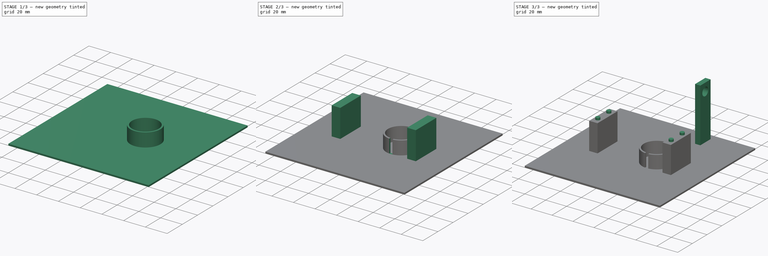
[diagram: build sequence overview — one tinted view per stage of 3, left to right]
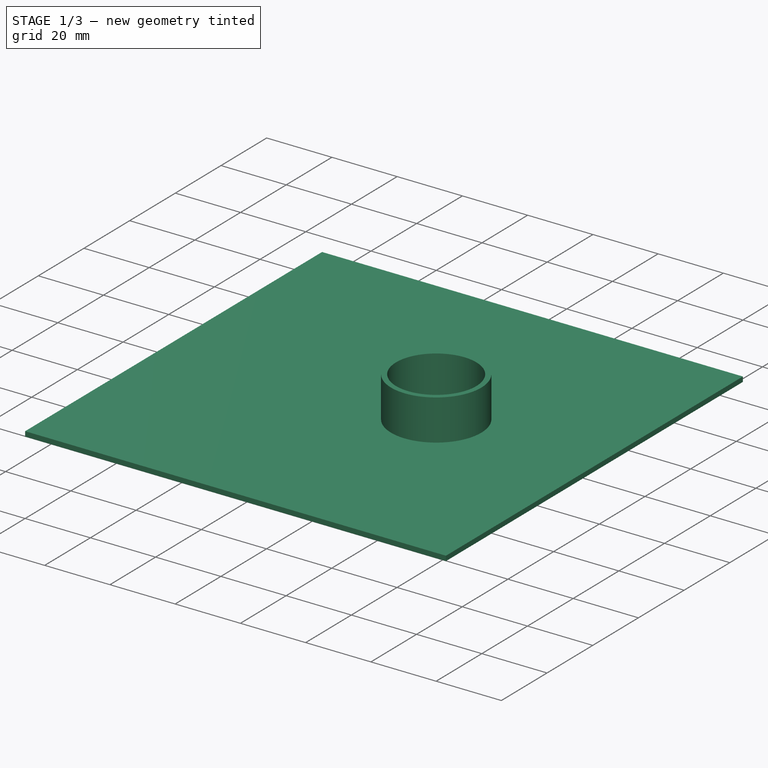
[diagram: stage 1 of 3 — iso view after this stage's code; geometry added in this stage tinted green]
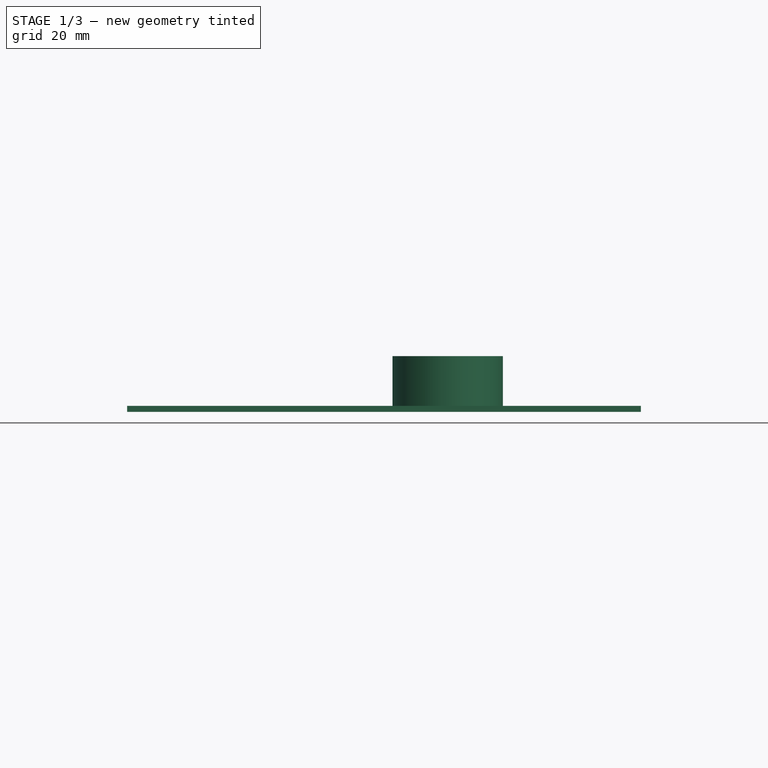
[diagram: stage 1 of 3 — front view after this stage's code; geometry added in this stage tinted green]
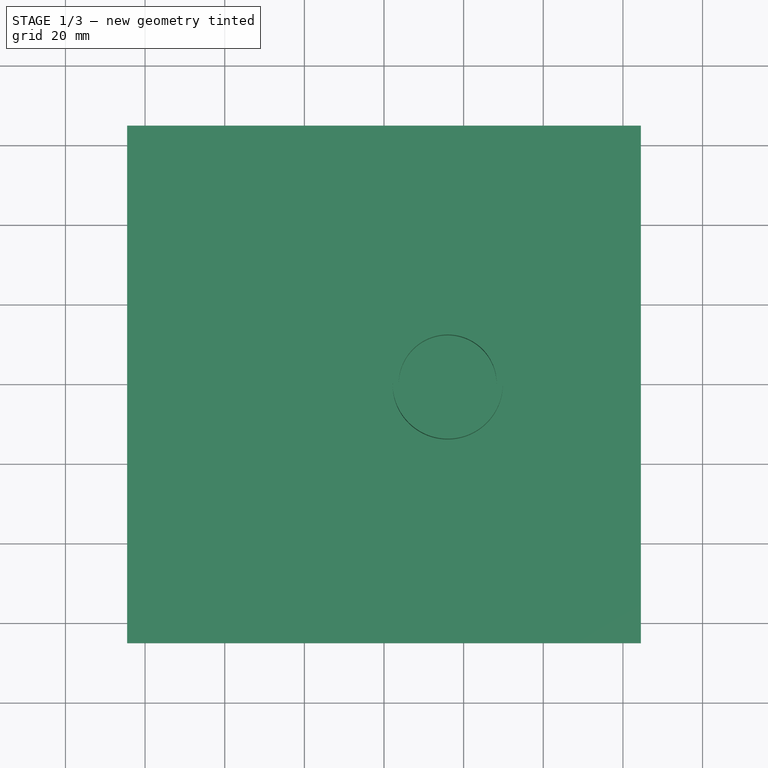
[diagram: stage 1 of 3 — top view after this stage's code; geometry added in this stage tinted green]
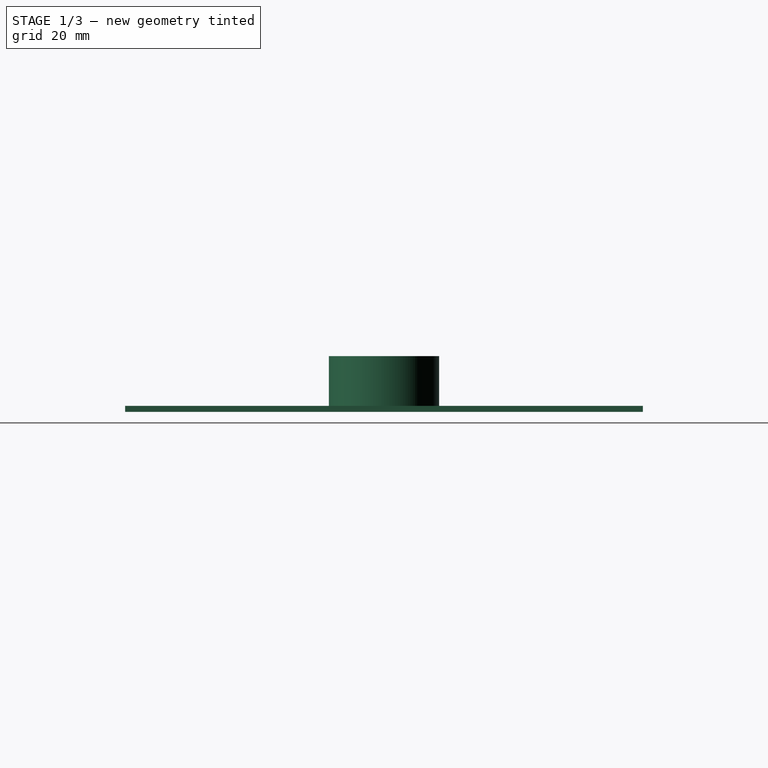
[diagram: stage 1 of 3 — right view after this stage's code; geometry added in this stage tinted green]
FCSTD DOCUMENT  (FreeCAD 0.18.4R)
Label: Resp_Base
License: All rights reserved
LicenseURL: http://en.wikipedia.org/wiki/All_rights_reserved
objects: Sketcher::SketchObject×8, PartDesign::Pad×5, PartDesign::Pocket×3, PartDesign::Body×1
note: 25 computed .brp shape members not serialized (recipe doc carries the construction recipe); baked Part::Feature solids carry a one-line shape summary decoded from their .brp

FEATURE [Sketcher::SketchObject] Sketch
  MapMode = 5
  Support = -> [XY_Plane]
  sketch-geometry (4):
    g0: LineSegment StartX=-64.5 StartY=65 StartZ=0 EndX=64.5 EndY=65 EndZ=0
    g1: LineSegment StartX=64.5 StartY=65 StartZ=0 EndX=64.5 EndY=-65 EndZ=0
    g2: LineSegment StartX=64.5 StartY=-65 StartZ=0 EndX=-64.5 EndY=-65 EndZ=0
    g3: LineSegment StartX=-64.5 StartY=-65 StartZ=0 EndX=-64.5 EndY=65 EndZ=0
  constraints (12):
    c: Coincident(g0,g1)
    c: Coincident(g1,g2)
    c: Coincident(g2,g3)
    c: Coincident(g3,g0)
    c: Horizontal(g0)
    c: Horizontal(g2)
    c: Vertical(g1)
    c: Vertical(g3)
    c: Distance(g0) = 129
    c: Distance(g1) = 130
    c: DistanceX(g0,g-1) = 64.5
    c: DistanceY(g2,g-1) = 65
FEATURE [PartDesign::Pad] Pad
  Length = 1.5
  Length2 = 100
  Profile = -> Sketch
  Type = 0
FEATURE [Sketcher::SketchObject] Sketch001
  MapMode = 5
  Placement = pos=(0,0,1.5) rot=(0,0,1;0rad)
  Support = -> [Pad]
  sketch-geometry (1):
    g0: Circle CenterX=16 CenterY=0 CenterZ=0 NormalX=0 NormalY=0 NormalZ=1 AngleXU=0 Radius=13.85
  constraints (3):
    c: PointOnObject(g0,g-1)
    c: DistanceX(g-1,g0) = 16
    c: Diameter(g0) = 27.7
FEATURE [PartDesign::Pad] Pad001
  BaseFeature = -> Pad
  Length = 12.5
  Length2 = 100
  Profile = -> Sketch001
  Type = 0
FEATURE [Sketcher::SketchObject] Sketch002
  MapMode = 5
  Placement = pos=(0,0,14) rot=(0,0,1;0rad)
  Support = -> [Pad001]
  sketch-geometry (1):
    g0: Circle CenterX=16 CenterY=0 CenterZ=0 NormalX=0 NormalY=0 NormalZ=1 AngleXU=0 Radius=12.3
  constraints (3):
    c: PointOnObject(g0,g-1)
    c: DistanceX(g-1,g0) = 16
    c: Diameter(g0) = 24.6
FEATURE [PartDesign::Pocket] Pocket
  BaseFeature = -> Pad001
  Length = 12.5
  Length2 = 100
  Profile = -> Sketch002
  Type = 0
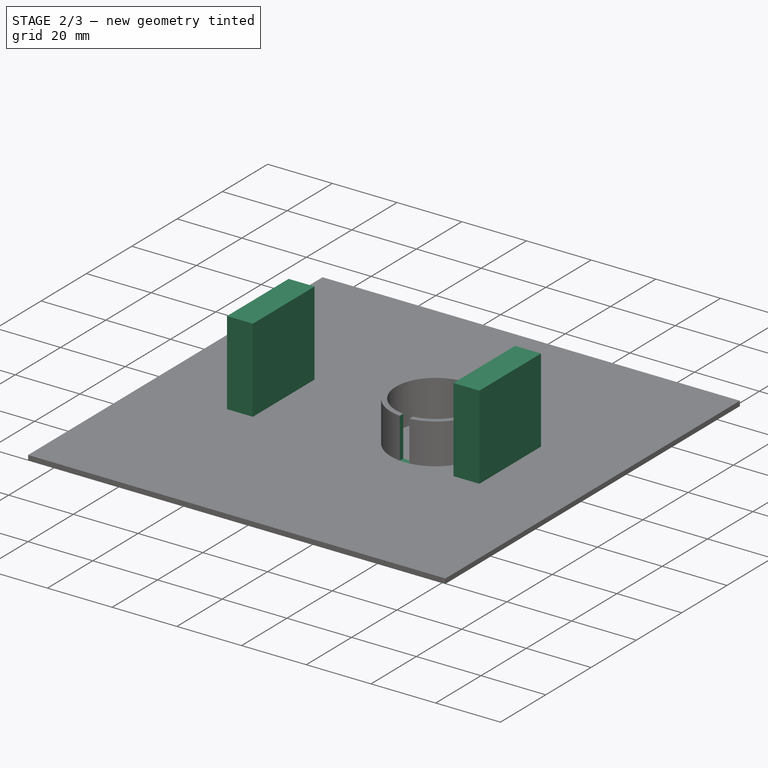
[diagram: stage 2 of 3 — iso view after this stage's code; geometry added in this stage tinted green]
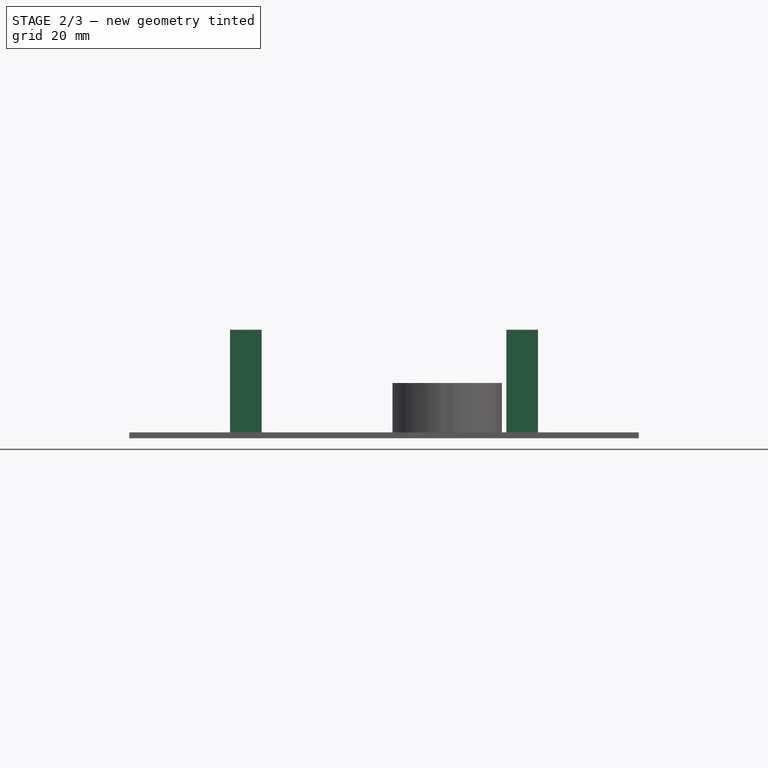
[diagram: stage 2 of 3 — front view after this stage's code; geometry added in this stage tinted green]
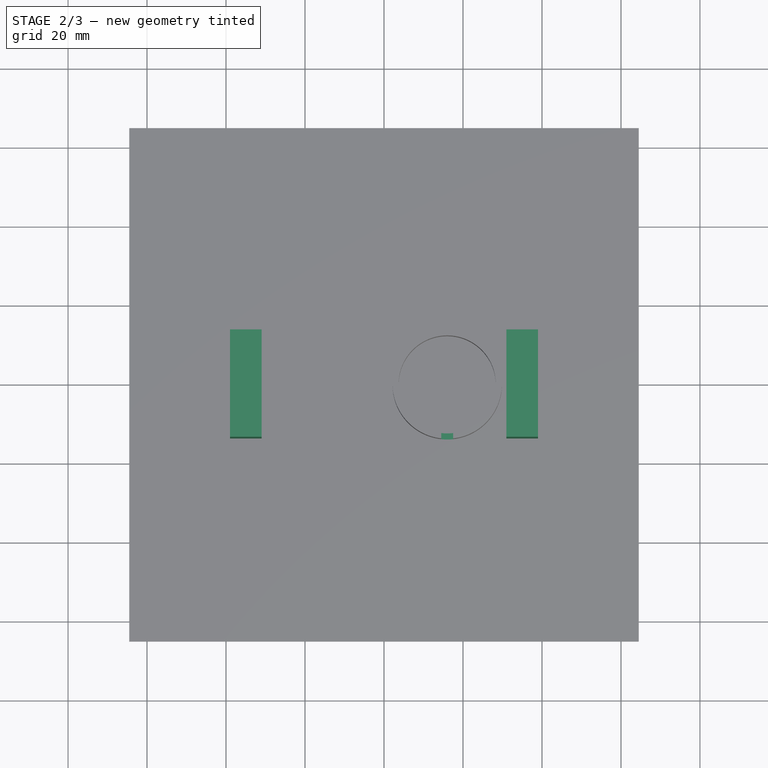
[diagram: stage 2 of 3 — top view after this stage's code; geometry added in this stage tinted green]
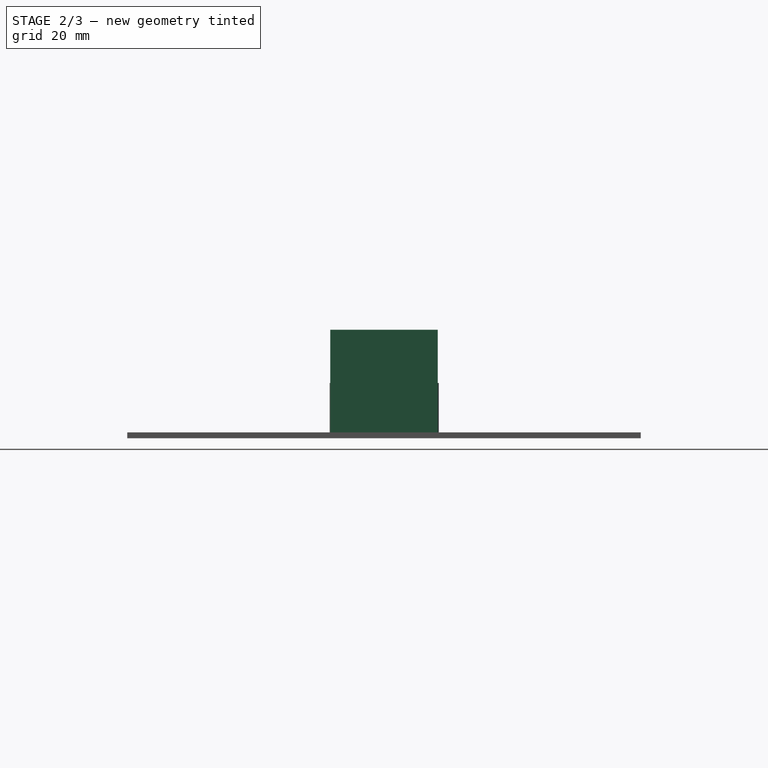
[diagram: stage 2 of 3 — right view after this stage's code; geometry added in this stage tinted green]
FEATURE [Sketcher::SketchObject] Sketch003
  MapMode = 5
  Placement = pos=(0,0,14) rot=(0,0,1;0rad)
  Support = -> [Pocket]
  sketch-geometry (4):
    g0: LineSegment StartX=14.5 StartY=-11 StartZ=0 EndX=17.5 EndY=-11 EndZ=0
    g1: LineSegment StartX=17.5 StartY=-11 StartZ=0 EndX=17.5 EndY=-14.5 EndZ=0
    g2: LineSegment StartX=17.5 StartY=-14.5 StartZ=0 EndX=14.5 EndY=-14.5 EndZ=0
    g3: LineSegment StartX=14.5 StartY=-14.5 StartZ=0 EndX=14.5 EndY=-11 EndZ=0
  constraints (12):
    c: Coincident(g0,g1)
    c: Coincident(g1,g2)
    c: Coincident(g2,g3)
    c: Coincident(g3,g0)
    c: Horizontal(g0)
    c: Horizontal(g2)
    c: Vertical(g1)
    c: Vertical(g3)
    c: Distance(g0) = 3
    c: Distance(g1) = 3.5
    c: DistanceX(g-1,g0) = 14.5
    c: DistanceY(g0,g-1) = 11
FEATURE [PartDesign::Pocket] Pocket001
  BaseFeature = -> Pocket
  Length = 12.5
  Length2 = 100
  Profile = -> Sketch003
  Type = 0
FEATURE [Sketcher::SketchObject] Sketch004
  MapMode = 5
  Placement = pos=(0,0,1.5) rot=(0,0,1;0rad)
  Support = -> [Pocket001]
  sketch-geometry (8):
    g0: LineSegment StartX=31 StartY=13.6 StartZ=0 EndX=39 EndY=13.6 EndZ=0
    g1: LineSegment StartX=39 StartY=13.6 StartZ=0 EndX=39 EndY=-13.6 EndZ=0
    g2: LineSegment StartX=39 StartY=-13.6 StartZ=0 EndX=31 EndY=-13.6 EndZ=0
    g3: LineSegment StartX=31 StartY=-13.6 StartZ=0 EndX=31 EndY=13.6 EndZ=0
    g4: LineSegment StartX=-39 StartY=13.6 StartZ=0 EndX=-31 EndY=13.6 EndZ=0
    g5: LineSegment StartX=-31 StartY=13.6 StartZ=0 EndX=-31 EndY=-13.6 EndZ=0
    g6: LineSegment StartX=-31 StartY=-13.6 StartZ=0 EndX=-39 EndY=-13.6 EndZ=0
    g7: LineSegment StartX=-39 StartY=-13.6 StartZ=0 EndX=-39 EndY=13.6 EndZ=0
  constraints (24):
    c: Coincident(g0,g1)
    c: Coincident(g1,g2)
    c: Coincident(g2,g3)
    c: Coincident(g3,g0)
    c: Horizontal(g0)
    c: Horizontal(g2)
    c: Vertical(g1)
    c: Vertical(g3)
    c: Coincident(g4,g5)
    c: Coincident(g5,g6)
    c: Coincident(g6,g7)
    c: Coincident(g7,g4)
    c: Horizontal(g4)
    c: Horizontal(g6)
    c: Vertical(g5)
    c: Vertical(g7)
    c: DistanceX(g-1,g0) = 39
    c: DistanceX(g4,g-1) = 39
    c: Distance(g0) = 8
    c: Distance(g4) = 8
    c: Distance(g1) = 27.2
    c: Distance(g7) = 27.2
    c: DistanceY(g2,g-1) = 13.6
    c: DistanceY(g5,g-1) = 13.6
FEATURE [PartDesign::Pad] Pad002
  BaseFeature = -> Pocket001
  Length = 26
  Length2 = 100
  Profile = -> Sketch004
  Type = 0
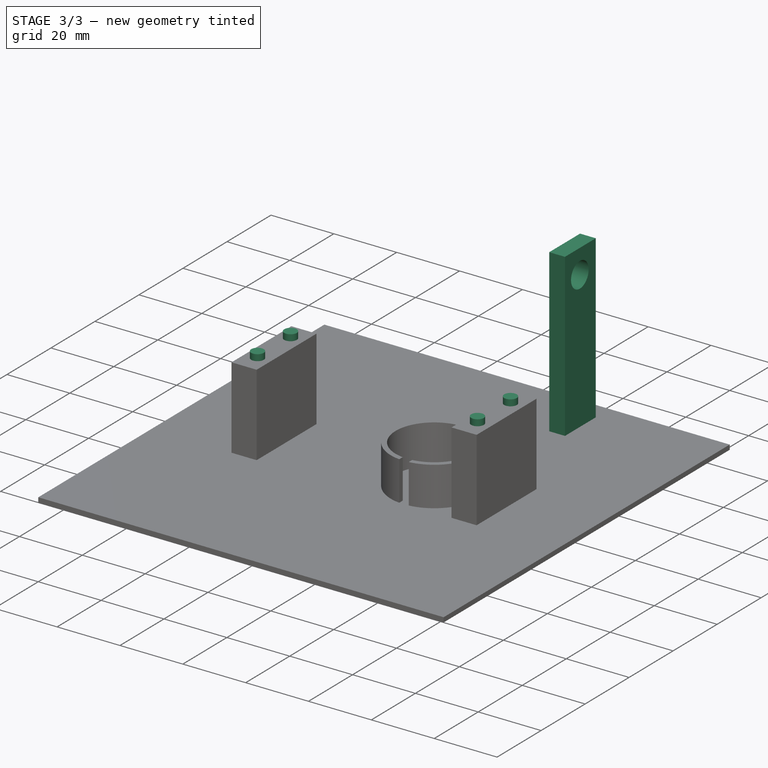
[diagram: stage 3 of 3 — iso view after this stage's code; geometry added in this stage tinted green]
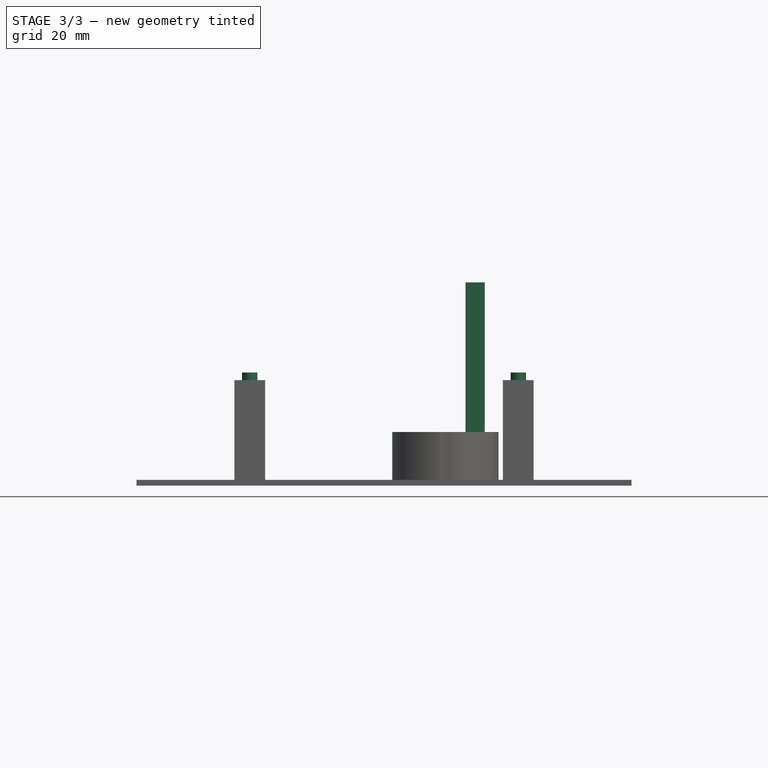
[diagram: stage 3 of 3 — front view after this stage's code; geometry added in this stage tinted green]
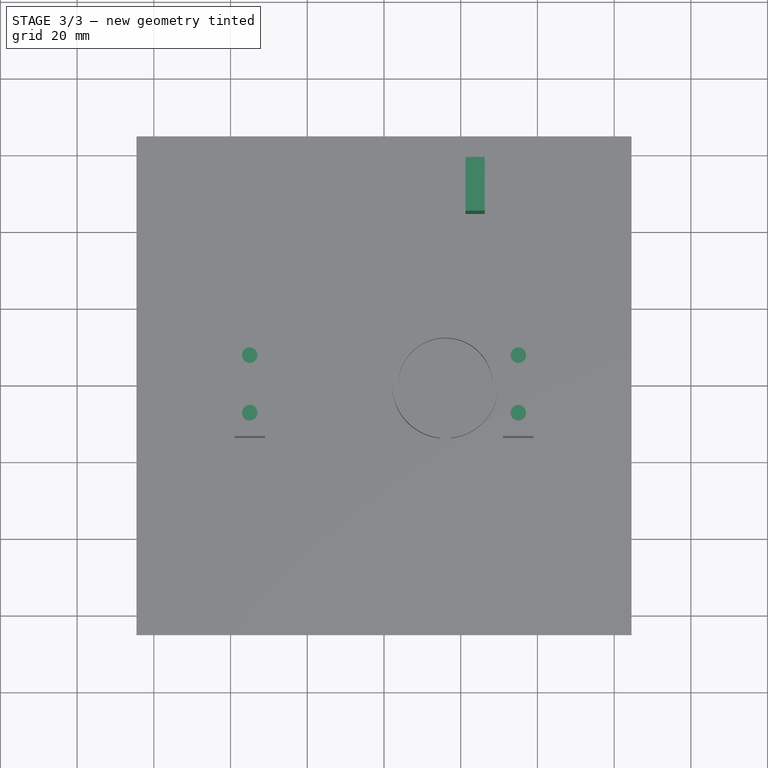
[diagram: stage 3 of 3 — top view after this stage's code; geometry added in this stage tinted green]
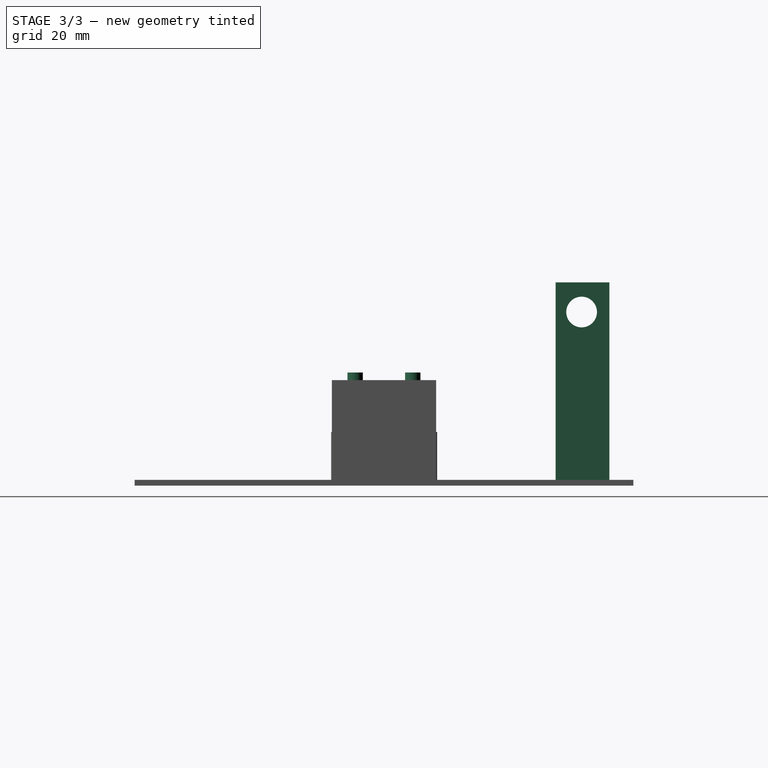
[diagram: stage 3 of 3 — right view after this stage's code; geometry added in this stage tinted green]
FEATURE [Sketcher::SketchObject] Sketch005
  MapMode = 5
  Placement = pos=(0,0,27.5) rot=(0,0,1;0rad)
  Support = -> [Pad002]
  sketch-geometry (4):
    g0: Circle CenterX=35 CenterY=7.5 CenterZ=0 NormalX=0 NormalY=0 NormalZ=1 AngleXU=0 Radius=2
    g1: Circle CenterX=35 CenterY=-7.5 CenterZ=0 NormalX=0 NormalY=0 NormalZ=1 AngleXU=0 Radius=2
    g2: Circle CenterX=-35 CenterY=7.5 CenterZ=0 NormalX=0 NormalY=0 NormalZ=1 AngleXU=0 Radius=2
    g3: Circle CenterX=-35 CenterY=-7.5 CenterZ=0 NormalX=0 NormalY=0 NormalZ=1 AngleXU=0 Radius=2
  constraints (12):
    c: DistanceX(g-1,g0) = 35
    c: DistanceY(g-1,g0) = 7.5
    c: Diameter(g0) = 4
    c: DistanceX(g-1,g1) = 35
    c: DistanceY(g1,g-1) = 7.5
    c: Diameter(g1) = 4
    c: DistanceX(g2,g-1) = 35
    c: DistanceY(g-1,g2) = 7.5
    c: Diameter(g2) = 4
    c: DistanceX(g3,g-1) = 35
    c: DistanceY(g3,g-1) = 7.5
    c: Diameter(g3) = 4
FEATURE [PartDesign::Pad] Pad003
  BaseFeature = -> Pad002
  Length = 2
  Length2 = 100
  Profile = -> Sketch005
  Type = 0
FEATURE [Sketcher::SketchObject] Sketch006
  MapMode = 5
  Placement = pos=(0,0,1.5) rot=(0,0,1;0rad)
  Support = -> [Pad003]
  sketch-geometry (4):
    g0: LineSegment StartX=21.25 StartY=58.75 StartZ=0 EndX=26.25 EndY=58.75 EndZ=0
    g1: LineSegment StartX=26.25 StartY=58.75 StartZ=0 EndX=26.25 EndY=44.75 EndZ=0
    g2: LineSegment StartX=26.25 StartY=44.75 StartZ=0 EndX=21.25 EndY=44.75 EndZ=0
    g3: LineSegment StartX=21.25 StartY=44.75 StartZ=0 EndX=21.25 EndY=58.75 EndZ=0
  constraints (12):
    c: Coincident(g0,g1)
    c: Coincident(g1,g2)
    c: Coincident(g2,g3)
    c: Coincident(g3,g0)
    c: Horizontal(g0)
    c: Horizontal(g2)
    c: Vertical(g1)
    c: Vertical(g3)
    c: Distance(g0) = 5
    c: Distance(g3) = 14
    c: DistanceX(g-1,g2) = 21.25
    c: DistanceY(g-1,g2) = 44.75
FEATURE [PartDesign::Pad] Pad004
  BaseFeature = -> Pad003
  Length = 51.5
  Length2 = 100
  Profile = -> Sketch006
  Type = 0
FEATURE [Sketcher::SketchObject] Sketch007
  MapMode = 5
  Placement = pos=(26.25,0,0) rot=(0.57735,0.57735,0.57735;2.0944rad)
  Support = -> [Pad004]
  sketch-geometry (1):
    g0: Circle CenterX=51.5116 CenterY=45.2623 CenterZ=0 NormalX=0 NormalY=0 NormalZ=1 AngleXU=0 Radius=4
  constraints (1):
    c: Diameter(g0) = 8
FEATURE [PartDesign::Pocket] Pocket002
  BaseFeature = -> Pad004
  Length = 5
  Length2 = 100
  Profile = -> Sketch007
  Type = 0
FEATURE [PartDesign::Body] Body
  Group = -> [Sketch,Pad,Sketch001,Pad001,Sketch002,Pocket,Sketch003,Pocket001,Sketch004,Pad002,Sketch005,Pad003,Sketch006,Pad004,Sketch007,Pocket002]
  Origin = -> Origin
  Tip = -> Pocket002
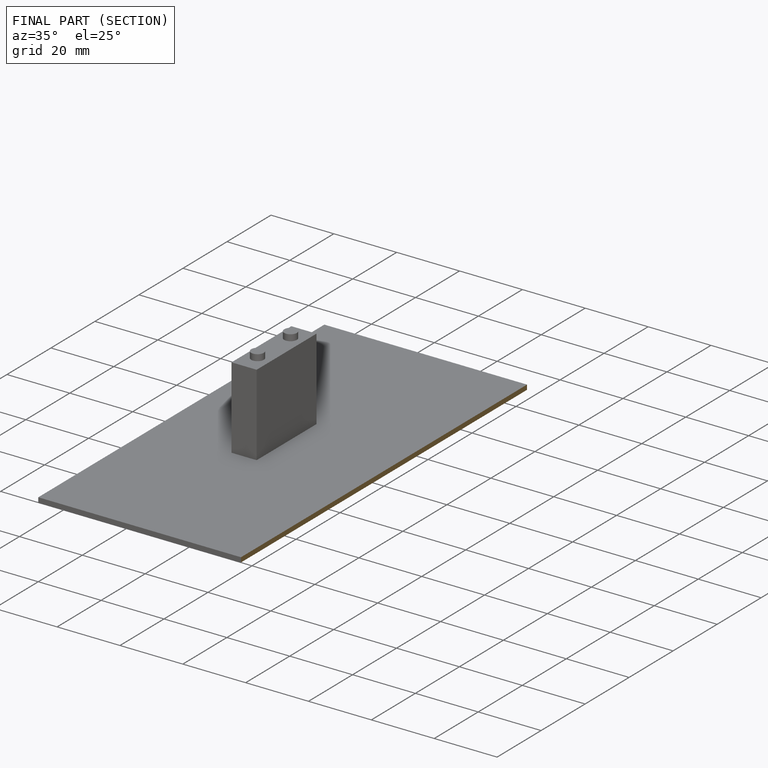
[diagram: finished part — half-section view (interior)]
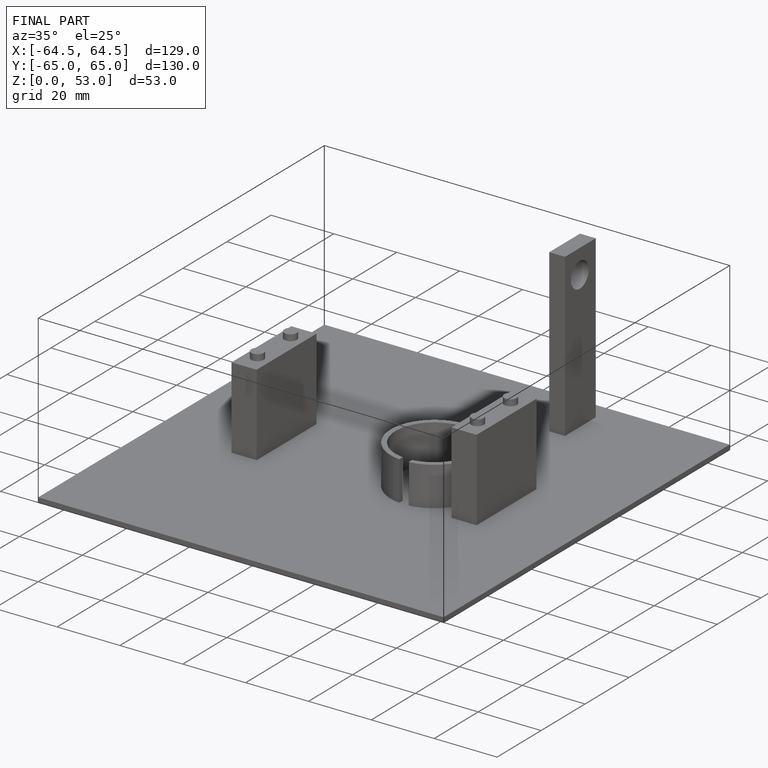
[diagram: finished part — iso view with bounding-box wireframe]
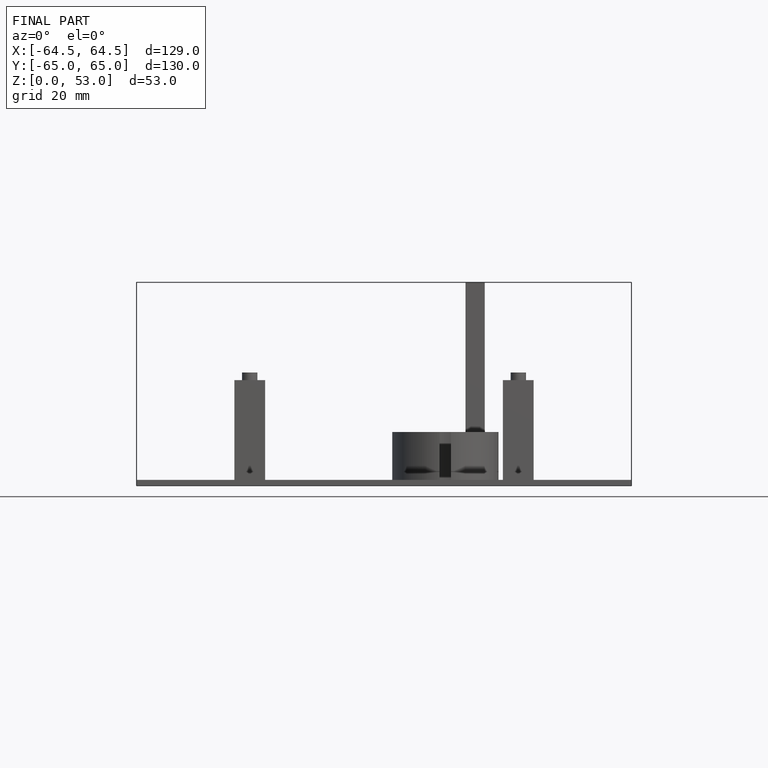
[diagram: finished part — front view with bounding-box wireframe]
